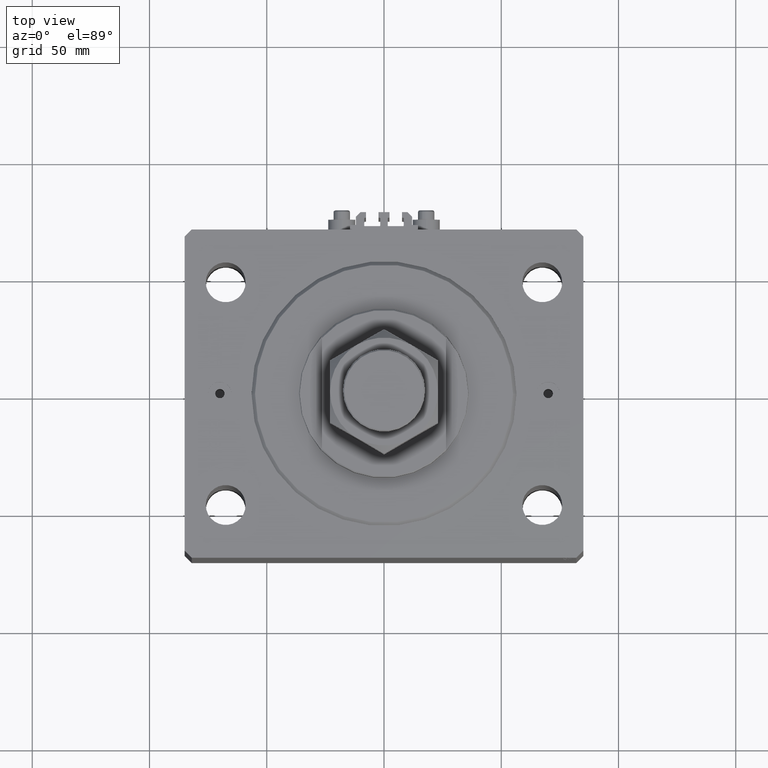
[diagram: clean part render]
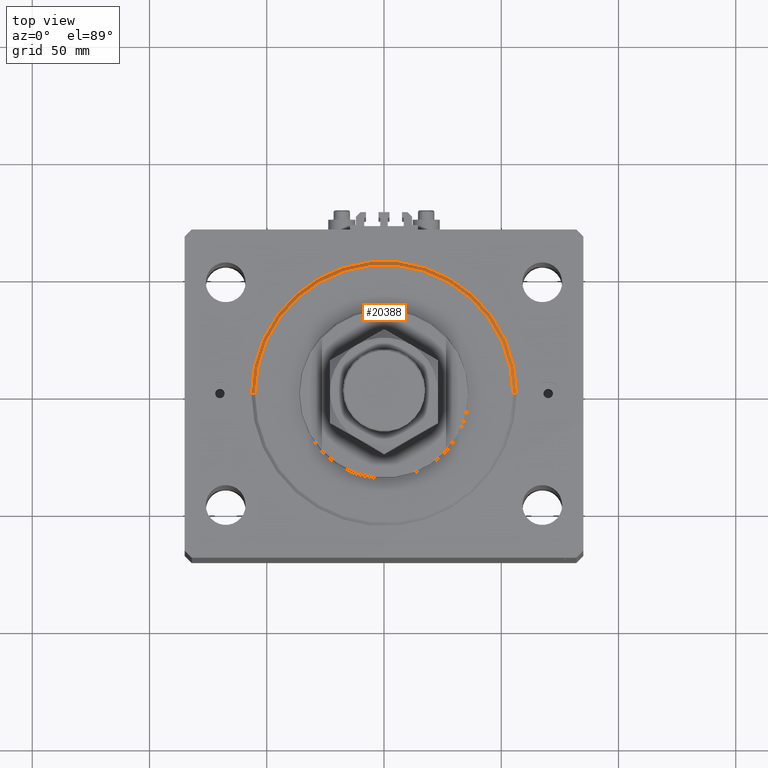
[diagram: same view with one face highlighted and labeled with its STEP entity id]
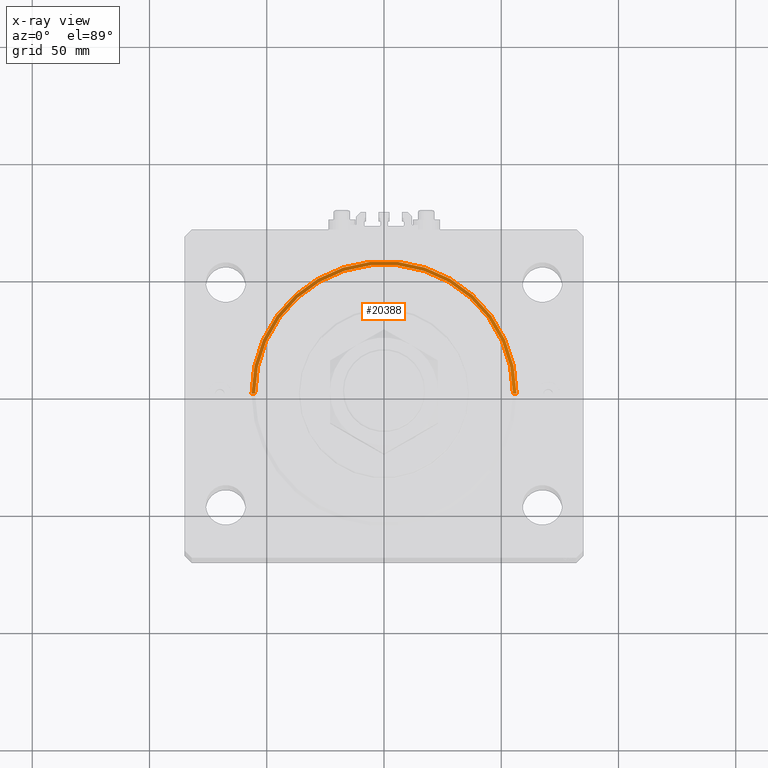
[diagram: x-ray of the same camera — body ghosted, the highlighted face saturated]
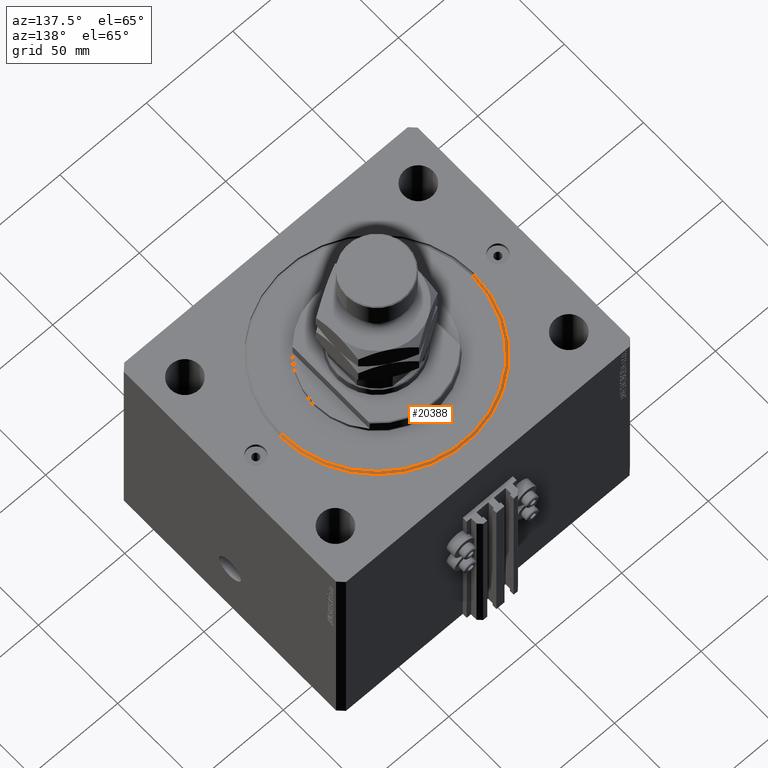
[diagram: same view with one face highlighted and labeled with its STEP entity id]
A machine part, top view. The second image highlights one B-rep face of the part: STEP entity #20388.
The next image is the same camera in x-ray: the body ghosted, the highlighted face saturated — about 0% of this face is hidden behind the body in this view.
A second angle (auxiliary view) of the same face is appended — the face is thin or edge-on in the first view.
In plain terms, the highlighted conical surface has half-angle 45 deg.
Its self-contained STEP definition (entity closure, byte-faithful):
#1418 = DIRECTION ( 'NONE',  ( 1.000000000000000000, 0.000000000000000000, 0.000000000000000000 ) ) ;
#1480 = ORIENTED_EDGE ( 'NONE', *, *, #18553, .F. ) ;
#2038 = LINE ( 'NONE', #46867, #4743 ) ;
#2455 = DIRECTION ( 'NONE',  ( -0.000000000000000000, -0.000000000000000000, 1.000000000000000000 ) ) ;
#4743 = VECTOR ( 'NONE', #32258, 1000.000000000000000 ) ;
#5691 = CARTESIAN_POINT ( 'NONE',  ( 0.000000000000000000, 0.000000000000000000, 1.499999999999987566 ) ) ;
#5716 = ORIENTED_EDGE ( 'NONE', *, *, #41556, .F. ) ;
#6950 = AXIS2_PLACEMENT_3D ( 'NONE', #5691, #2455, #47285 ) ;
#7087 = CARTESIAN_POINT ( 'NONE',  ( 55.00000000000002132, 0.000000000000000000, 0.000000000000000000 ) ) ;
#12331 = VERTEX_POINT ( 'NONE', #23764 ) ;
#13057 = CIRCLE ( 'NONE', #45479, 56.50000000000000711 ) ;
#13387 = EDGE_LOOP ( 'NONE', ( #1480, #47885, #5716, #39473 ) ) ;
#13886 = AXIS2_PLACEMENT_3D ( 'NONE', #31298, #23115, #42692 ) ;
#18366 = CARTESIAN_POINT ( 'NONE',  ( -56.50000000000000711, 6.919254415182544548E-15, 1.499999999999987566 ) ) ;
#18553 = EDGE_CURVE ( 'NONE', #34649, #22993, #29730, .T. ) ;
#20388 = ADVANCED_FACE ( 'NONE', ( #46787 ), #31442, .T. ) ;
#22993 = VERTEX_POINT ( 'NONE', #7087 ) ;
#23115 = DIRECTION ( 'NONE',  ( -0.000000000000000000, -0.000000000000000000, -1.000000000000000000 ) ) ;
#23764 = CARTESIAN_POINT ( 'NONE',  ( -56.50000000000000711, 0.000000000000000000, 1.499999999999987566 ) ) ;
#28522 = VECTOR ( 'NONE', #48592, 1000.000000000000000 ) ;
#28714 = EDGE_CURVE ( 'NONE', #22993, #35698, #2038, .T. ) ;
#29730 = CIRCLE ( 'NONE', #13886, 55.00000000000002132 ) ;
#31298 = CARTESIAN_POINT ( 'NONE',  ( 0.000000000000000000, 0.000000000000000000, 0.000000000000000000 ) ) ;
#31442 = CONICAL_SURFACE ( 'NONE', #6950, 56.50000000000000711, 0.7853981633974482790 ) ;
#32258 = DIRECTION ( 'NONE',  ( 0.7071067811865475727, 0.000000000000000000, 0.7071067811865474617 ) ) ;
#32457 = CARTESIAN_POINT ( 'NONE',  ( 56.50000000000000711, 6.919254415182546126E-15, 1.499999999999987566 ) ) ;
#34649 = VERTEX_POINT ( 'NONE', #45032 ) ;
#35362 = CARTESIAN_POINT ( 'NONE',  ( 0.000000000000000000, 0.000000000000000000, 1.499999999999987566 ) ) ;
#35698 = VERTEX_POINT ( 'NONE', #32457 ) ;
#37207 = LINE ( 'NONE', #18366, #28522 ) ;
#37673 = DIRECTION ( 'NONE',  ( -0.000000000000000000, -0.000000000000000000, 1.000000000000000000 ) ) ;
#39473 = ORIENTED_EDGE ( 'NONE', *, *, #28714, .F. ) ;
#39547 = EDGE_CURVE ( 'NONE', #34649, #12331, #37207, .T. ) ;
#41556 = EDGE_CURVE ( 'NONE', #35698, #12331, #13057, .T. ) ;
#42692 = DIRECTION ( 'NONE',  ( 1.000000000000000000, 0.000000000000000000, 0.000000000000000000 ) ) ;
#45032 = CARTESIAN_POINT ( 'NONE',  ( -55.00000000000002132, 6.827405905246494765E-15, 0.000000000000000000 ) ) ;
#45479 = AXIS2_PLACEMENT_3D ( 'NONE', #35362, #37673, #1418 ) ;
#46787 = FACE_OUTER_BOUND ( 'NONE', #13387, .T. ) ;
#46867 = CARTESIAN_POINT ( 'NONE',  ( 56.50000000000000711, 0.000000000000000000, 1.499999999999987566 ) ) ;
#47285 = DIRECTION ( 'NONE',  ( 1.000000000000000000, 0.000000000000000000, 0.000000000000000000 ) ) ;
#47885 = ORIENTED_EDGE ( 'NONE', *, *, #39547, .T. ) ;
#48592 = DIRECTION ( 'NONE',  ( -0.7071067811865475727, 8.659560562354931626E-17, 0.7071067811865474617 ) ) ;